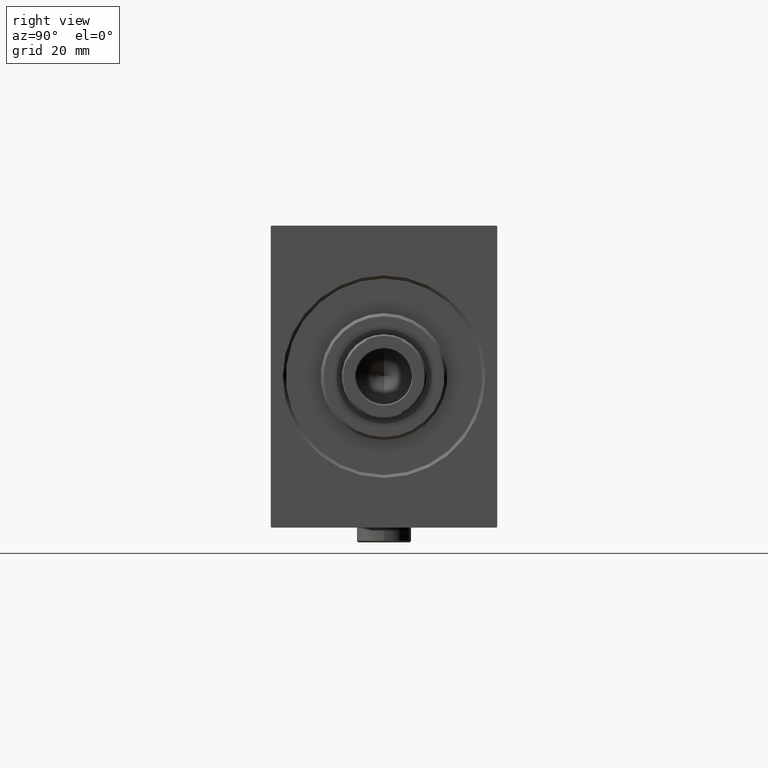
[diagram: clean part render]
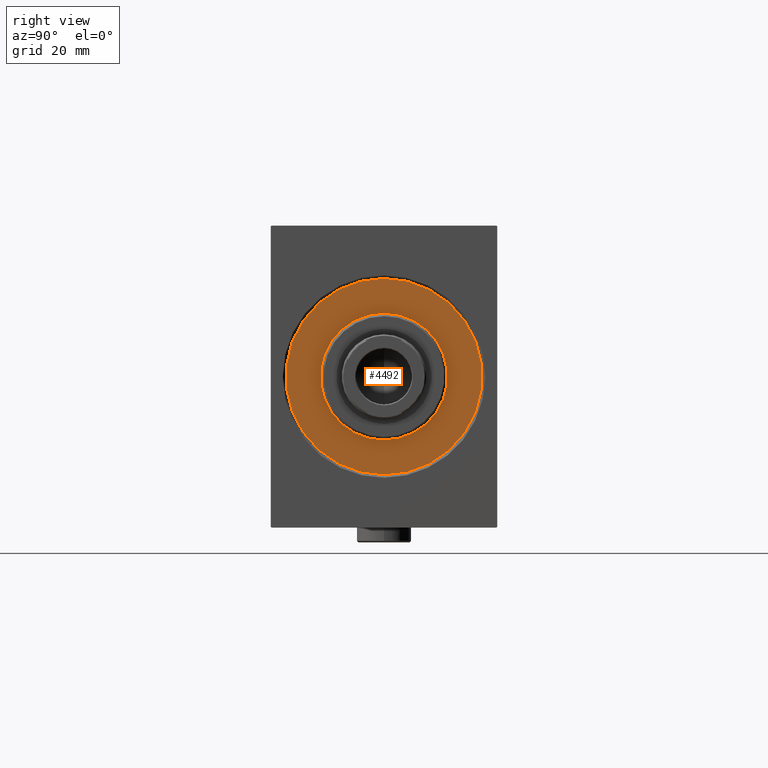
[diagram: same view with one face highlighted and labeled with its STEP entity id]
A machine part, right view. The second image highlights one B-rep face of the part: STEP entity #4492.
In plain terms, the highlighted planar face has unit normal (1, 0, 0).
Its self-contained STEP definition (entity closure, byte-faithful):
#1249 = CARTESIAN_POINT ( 'NONE',  ( 0.000000000000000000, 2.571758278209441661E-15, -21.00000000000000000 ) ) ;
#3683 = EDGE_LOOP ( 'NONE', ( #19553, #24015 ) ) ;
#4492 = ADVANCED_FACE ( 'NONE', ( #24759, #24095 ), #38241, .T. ) ;
#4648 = CARTESIAN_POINT ( 'NONE',  ( 0.000000000000000000, 0.000000000000000000, 0.000000000000000000 ) ) ;
#6340 = AXIS2_PLACEMENT_3D ( 'NONE', #35215, #13293, #42173 ) ;
#6544 = CARTESIAN_POINT ( 'NONE',  ( 0.000000000000000000, 0.000000000000000000, -32.50000000000000000 ) ) ;
#6857 = CARTESIAN_POINT ( 'NONE',  ( 0.000000000000000000, 0.000000000000000000, 21.00000000000000000 ) ) ;
#6891 = CARTESIAN_POINT ( 'NONE',  ( 0.000000000000000000, 0.000000000000000000, 0.000000000000000000 ) ) ;
#7500 = DIRECTION ( 'NONE',  ( 1.000000000000000000, 0.000000000000000000, 0.000000000000000000 ) ) ;
#7798 = CIRCLE ( 'NONE', #6340, 21.00000000000000000 ) ;
#7945 = DIRECTION ( 'NONE',  ( 0.000000000000000000, 0.000000000000000000, -1.000000000000000000 ) ) ;
#8670 = DIRECTION ( 'NONE',  ( 0.000000000000000000, 0.000000000000000000, -1.000000000000000000 ) ) ;
#11072 = CARTESIAN_POINT ( 'NONE',  ( 0.000000000000000000, 0.000000000000000000, 0.000000000000000000 ) ) ;
#13293 = DIRECTION ( 'NONE',  ( 1.000000000000000000, -0.000000000000000000, 0.000000000000000000 ) ) ;
#14284 = VERTEX_POINT ( 'NONE', #6857 ) ;
#15202 = VERTEX_POINT ( 'NONE', #18970 ) ;
#17638 = DIRECTION ( 'NONE',  ( 1.000000000000000000, 0.000000000000000000, 0.000000000000000000 ) ) ;
#17700 = EDGE_CURVE ( 'NONE', #21860, #14284, #25267, .T. ) ;
#17770 = CIRCLE ( 'NONE', #41419, 32.50000000000000000 ) ;
#18212 = AXIS2_PLACEMENT_3D ( 'NONE', #11072, #7500, #7945 ) ;
#18970 = CARTESIAN_POINT ( 'NONE',  ( 0.000000000000000000, 3.980102097228898626E-15, 32.50000000000000000 ) ) ;
#19528 = AXIS2_PLACEMENT_3D ( 'NONE', #4648, #29293, #8670 ) ;
#19553 = ORIENTED_EDGE ( 'NONE', *, *, #36957, .T. ) ;
#19650 = CIRCLE ( 'NONE', #18212, 32.50000000000000000 ) ;
#21048 = VERTEX_POINT ( 'NONE', #6544 ) ;
#21860 = VERTEX_POINT ( 'NONE', #1249 ) ;
#24015 = ORIENTED_EDGE ( 'NONE', *, *, #27849, .T. ) ;
#24095 = FACE_BOUND ( 'NONE', #31697, .T. ) ;
#24150 = DIRECTION ( 'NONE',  ( 0.000000000000000000, 0.000000000000000000, -1.000000000000000000 ) ) ;
#24759 = FACE_OUTER_BOUND ( 'NONE', #3683, .T. ) ;
#24856 = ORIENTED_EDGE ( 'NONE', *, *, #38549, .F. ) ;
#25267 = CIRCLE ( 'NONE', #19528, 21.00000000000000000 ) ;
#25322 = ORIENTED_EDGE ( 'NONE', *, *, #17700, .F. ) ;
#27849 = EDGE_CURVE ( 'NONE', #15202, #21048, #19650, .T. ) ;
#29008 = DIRECTION ( 'NONE',  ( 0.000000000000000000, 0.000000000000000000, -1.000000000000000000 ) ) ;
#29293 = DIRECTION ( 'NONE',  ( 1.000000000000000000, -0.000000000000000000, 0.000000000000000000 ) ) ;
#31697 = EDGE_LOOP ( 'NONE', ( #24856, #25322 ) ) ;
#32094 = AXIS2_PLACEMENT_3D ( 'NONE', #37801, #35319, #29008 ) ;
#35215 = CARTESIAN_POINT ( 'NONE',  ( 0.000000000000000000, 0.000000000000000000, 0.000000000000000000 ) ) ;
#35319 = DIRECTION ( 'NONE',  ( 1.000000000000000000, 0.000000000000000000, 0.000000000000000000 ) ) ;
#36957 = EDGE_CURVE ( 'NONE', #21048, #15202, #17770, .T. ) ;
#37801 = CARTESIAN_POINT ( 'NONE',  ( 0.000000000000000000, 0.000000000000000000, 0.000000000000000000 ) ) ;
#38241 = PLANE ( 'NONE',  #32094 ) ;
#38549 = EDGE_CURVE ( 'NONE', #14284, #21860, #7798, .T. ) ;
#41419 = AXIS2_PLACEMENT_3D ( 'NONE', #6891, #17638, #24150 ) ;
#42173 = DIRECTION ( 'NONE',  ( 0.000000000000000000, 0.000000000000000000, -1.000000000000000000 ) ) ;